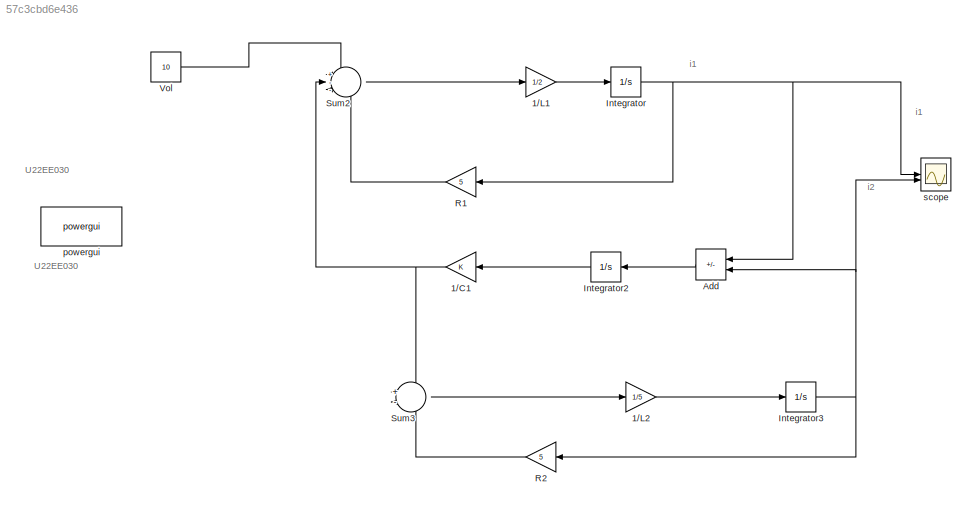
MODEL slx_57c3cbd6e436
KIND model
CONFIG AbsTol = auto
CONFIG EnableMultiTasking = off
CONFIG FixedStep = auto
CONFIG MaxStep = auto
CONFIG MinStep = auto
CONFIG RelTol = 1e-3
CONFIG SampleTimeConstraint = Unconstrained
CONFIG SolverName = VariableStepAuto
CONFIG StartTime = 0.0
CONFIG StopTime = 15
BLOCK [Gain] 1//C1
  NameLocation = top
BLOCK [Gain] 1//L1
  Gain = 1/2
BLOCK [Gain] 1//L2
  Gain = 1/5
BLOCK [Sum] Add
  IconShape = rectangular
  Inputs = +-
BLOCK [Integrator] Integrator
BLOCK [Integrator] Integrator2
  NameLocation = top
BLOCK [Integrator] Integrator3
BLOCK [Gain] R1
  Gain = 5
  NameLocation = top
BLOCK [Gain] R2
  Gain = 5
  NameLocation = top
BLOCK [Sum] Sum2
  Inputs = +--
BLOCK [Sum] Sum3
  Inputs = +-
BLOCK [Constant] Vol
  Value = 10
BLOCK [Reference] powergui  REF=spspowerguiLib/powergui
  LibrarySourceBlock = sps_lib/powergui
  Priority = 1
  SourceBlock = spspowerguiLib/powergui
  SourceType = PSB option menu block
BLOCK [Scope] scope
  Floating = off
  NumInputPorts = 2
  ScopeSpecificationString = Simulink.scopes.TimeScopeBlockCfg('CurrentConfiguration', extmgr.ConfigurationSet(extmgr.Configuration('Core','General UI',true,'FigureColor',[0.831372549019608 0.815686274509804 0.784313725490196]),extmgr.Configuration('Core','Source UI',true),extmgr.Configuration('Sources','WiredSimulink',true,'DataLoggingVariableName','ScopeData1'),extmgr.Configuration('Visuals','Time Domain',true,'SerializedDi...<+1880ch>
ANNOTATION (root): U22EE030
ANNOTATION (root): i1
ANNOTATION (root): i2
NET 1//C1:1 -> Sum2:2, Sum3:1
LINE 1//L1:1 -> Integrator:1
LINE 1//L2:1 -> Integrator3:1
LINE Add:1 -> Integrator2:1
LINE Integrator2:1 -> 1//C1:1
NET Integrator3:1 -> Add:2, R2:1, scope:2
NET Integrator:1 -> Add:1, R1:1, scope:1
LINE R1:1 -> Sum2:3
LINE R2:1 -> Sum3:2
LINE Sum2:1 -> 1//L1:1
LINE Sum3:1 -> 1//L2:1
LINE Vol:1 -> Sum2:1
note: NET lines group one-source signal fan-out (src -> all destinations, sorted); 1:1 wires keep LINE
